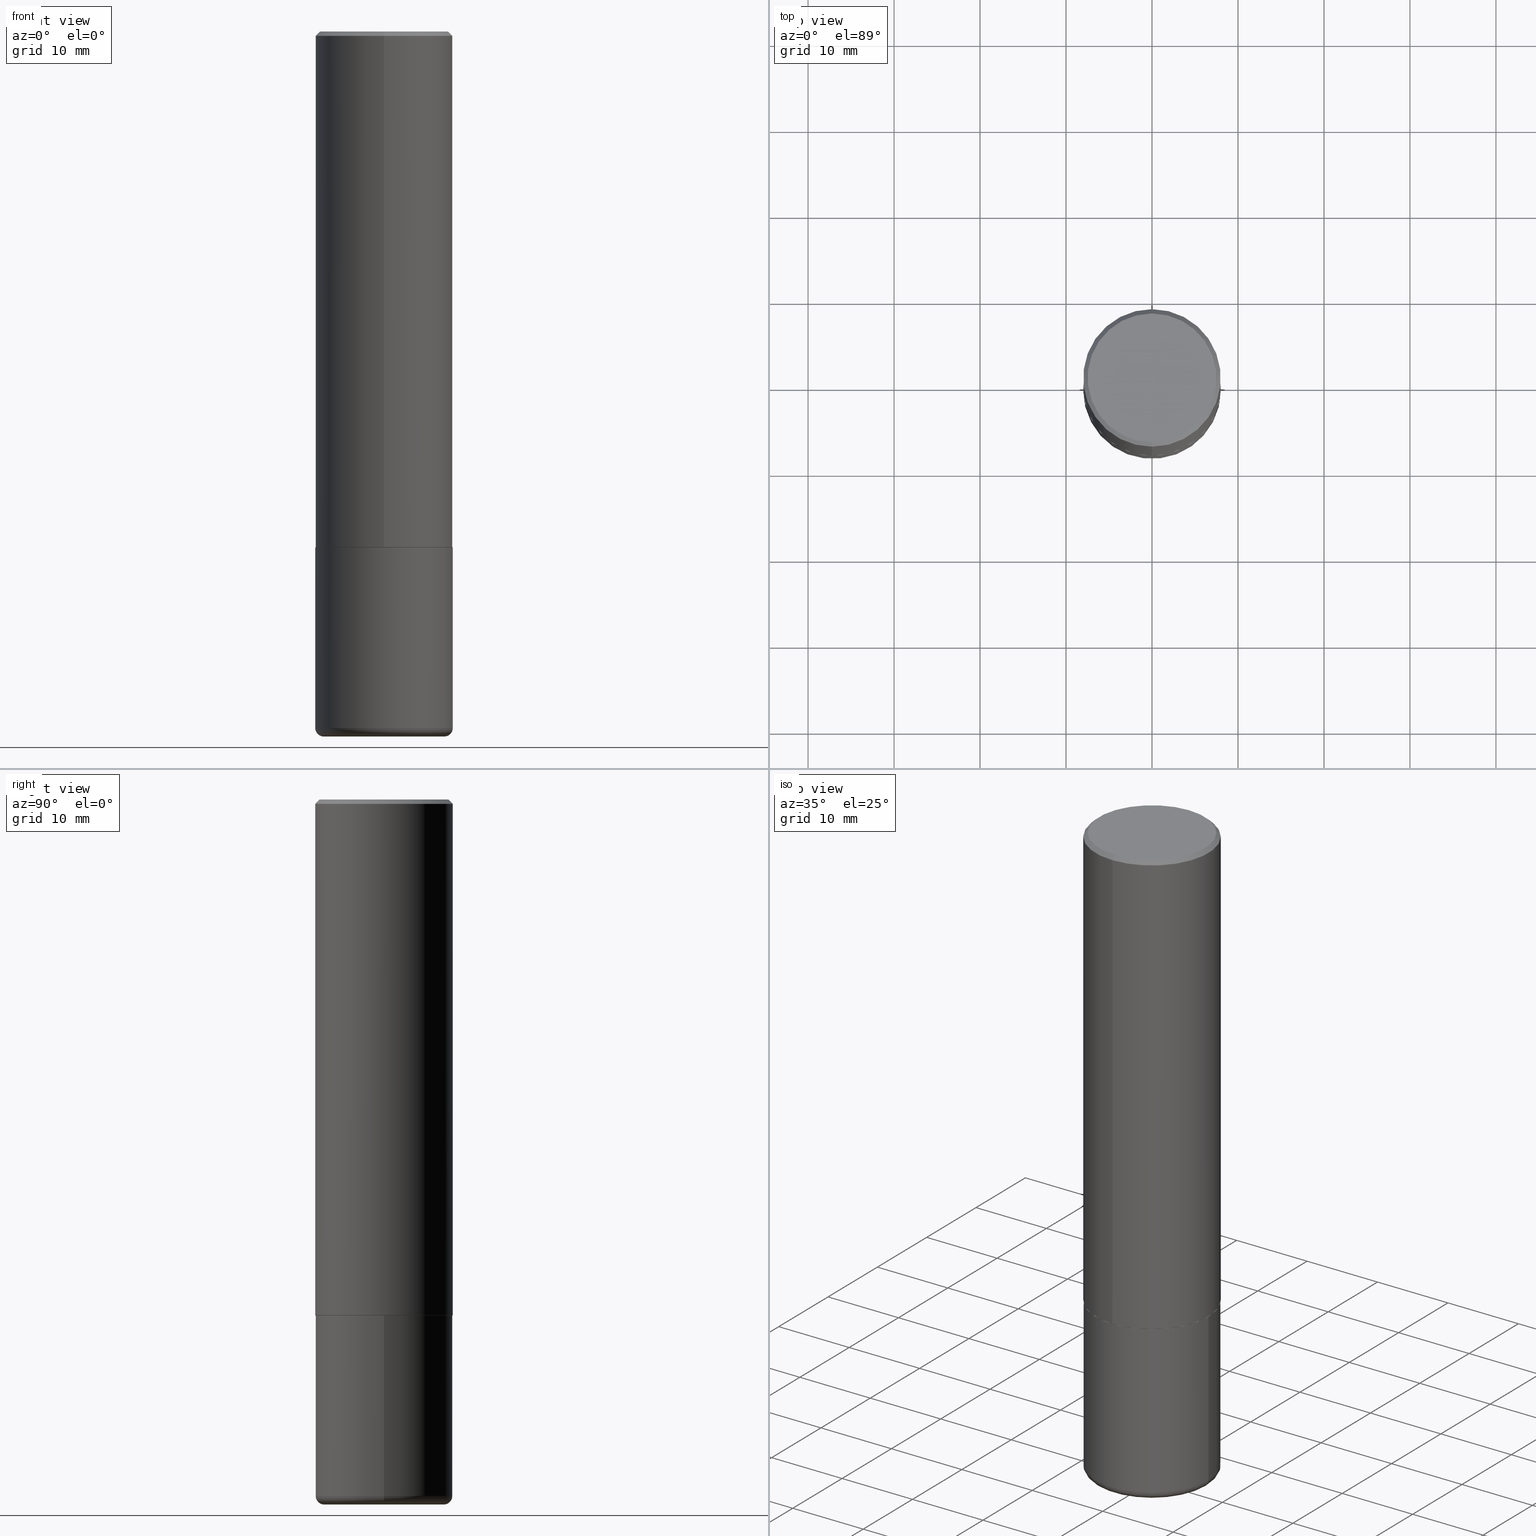
[diagram: canonical four-view strip — front | top / right | iso, engineering-drawing reading convention]
A machine part, canonical four-view strip (front | top / right | iso — engineering-drawing reading convention). The complete STEP part file that produces these views, byte-faithful:
ISO-10303-21;
HEADER;
FILE_DESCRIPTION (( 'STEP AP203' ),
    '1' );
FILE_NAME ('42716.STEP',
    '2024-03-04T03:37:44',
    ( '' ),
    ( '' ),
    'SwSTEP 2.0',
    'SolidWorks 2023',
    '' );
FILE_SCHEMA (( 'CONFIG_CONTROL_DESIGN' ));
ENDSEC;

DATA;
#1 = DIRECTION ( 'NONE',  ( -6.982962677686265922E-15, -1.000000000000000000, 3.492397173158153582E-15 ) ) ;
#2 = VERTEX_POINT ( 'NONE', #276 ) ;
#3 = CARTESIAN_POINT ( 'NONE',  ( 0.3149500000000002853, -1.333326893677419946E-14, -3.188899999999999846 ) ) ;
#4 = AXIS2_PLACEMENT_3D ( 'NONE', #77, #413, #89 ) ;
#5 = ORIENTED_EDGE ( 'NONE', *, *, #149, .F. ) ;
#6 = DIRECTION ( 'NONE',  ( -2.444829282501072008E-29, 3.492397173158153582E-15, 1.000000000000000000 ) ) ;
#7 = MANIFOLD_SOLID_BREP ( 'Body-Move/Copy2[1]', #113 ) ;
#8 = DIRECTION ( 'NONE',  ( 1.000000000000000000, 0.000000000000000000, 0.000000000000000000 ) ) ;
#9 = CC_DESIGN_PERSON_AND_ORGANIZATION_ASSIGNMENT ( #177, #112, ( #67 ) ) ;
#10 = DIRECTION ( 'NONE',  ( -6.982962677686264344E-15, -1.000000000000000000, 3.492397173158153188E-15 ) ) ;
#11 = VECTOR ( 'NONE', #25, 39.37007874015748143 ) ;
#12 =( GEOMETRIC_REPRESENTATION_CONTEXT ( 3 ) GLOBAL_UNCERTAINTY_ASSIGNED_CONTEXT ( ( #247 ) ) GLOBAL_UNIT_ASSIGNED_CONTEXT ( ( #28, #251, #268 ) ) REPRESENTATION_CONTEXT ( 'NONE', 'WORKASPACE' ) );
#13 = APPLICATION_PROTOCOL_DEFINITION ( 'international standard', 'config_control_design', 1994, #350 ) ;
#14 = CARTESIAN_POINT ( 'NONE',  ( -2.192301132659545875E-15, -0.3139500000000082780, -2.362199999999999189 ) ) ;
#15 = CARTESIAN_POINT ( 'NONE',  ( 0.000000000000000000, 0.000000000000000000, 0.000000000000000000 ) ) ;
#16 = APPROVAL_STATUS ( 'not_yet_approved' ) ;
#17 = EDGE_CURVE ( 'NONE', #320, #265, #198, .T. ) ;
#18 = DIRECTION ( 'NONE',  ( 2.444829282501072008E-29, -3.492397173158153582E-15, -1.000000000000000000 ) ) ;
#19 = CIRCLE ( 'NONE', #148, 0.3149500000000000632 ) ;
#20 = CARTESIAN_POINT ( 'NONE',  ( -3.972202148034154247E-45, 5.674223411957656832E-31, 1.624735999550272104E-16 ) ) ;
#21 = ADVANCED_FACE ( 'NONE', ( #375 ), #370, .F. ) ;
#22 = ORIENTED_EDGE ( 'NONE', *, *, #186, .F. ) ;
#23 = DIRECTION ( 'NONE',  ( -6.982962677686266711E-15, -1.000000000000000000, 3.491481338843145583E-15 ) ) ;
#24 = AXIS2_PLACEMENT_3D ( 'NONE', #331, #18, #240 ) ;
#25 = DIRECTION ( 'NONE',  ( -2.444829282501072288E-29, 3.492397173158153582E-15, 1.000000000000000000 ) ) ;
#26 = ORIENTED_EDGE ( 'NONE', *, *, #126, .T. ) ;
#27 = DIRECTION ( 'NONE',  ( -2.444829282501072008E-29, 3.492397173158153582E-15, 1.000000000000000000 ) ) ;
#28 =( CONVERSION_BASED_UNIT ( 'INCH', #318 ) LENGTH_UNIT ( ) NAMED_UNIT ( #238 ) );
#29 = EDGE_LOOP ( 'NONE', ( #301, #150 ) ) ;
#30 = CARTESIAN_POINT ( 'NONE',  ( 0.000000000000000000, 0.000000000000000000, 0.000000000000000000 ) ) ;
#31 = ORIENTED_EDGE ( 'NONE', *, *, #186, .T. ) ;
#32 = DIRECTION ( 'NONE',  ( -6.982962677686265922E-15, -1.000000000000000000, 3.469564049740290009E-15 ) ) ;
#33 = CC_DESIGN_APPROVAL ( #175, ( #67 ) ) ;
#34 = CARTESIAN_POINT ( 'NONE',  ( 2.237854346276465567E-15, 0.3149499999999920141, -2.361200000000001076 ) ) ;
#35 = VERTEX_POINT ( 'NONE', #306 ) ;
#36 = DIRECTION ( 'NONE',  ( -6.982962677686266711E-15, -1.000000000000000000, 3.480615376543096919E-15 ) ) ;
#37 = ORIENTED_EDGE ( 'NONE', *, *, #363, .F. ) ;
#38 = EDGE_CURVE ( 'NONE', #387, #210, #182, .T. ) ;
#39 = DIRECTION ( 'NONE',  ( -2.444829282501072008E-29, 3.492397173158153582E-15, 1.000000000000000000 ) ) ;
#40 = ORIENTED_EDGE ( 'NONE', *, *, #363, .T. ) ;
#41 = TOROIDAL_SURFACE ( 'NONE', #252, 0.2755500000000000171, 0.03940000000000037222 ) ;
#42 = APPLICATION_CONTEXT ( 'configuration controlled 3d designs of mechanical parts and assemblies' ) ;
#43 = EDGE_LOOP ( 'NONE', ( #162, #308, #353, #194 ) ) ;
#44 = ADVANCED_FACE ( 'NONE', ( #270 ), #205, .T. ) ;
#45 = DIRECTION ( 'NONE',  ( -2.444829282501072008E-29, 3.492397173158153582E-15, 1.000000000000000000 ) ) ;
#46 = AXIS2_PLACEMENT_3D ( 'NONE', #94, #23, #216 ) ;
#47 = APPROVAL_PERSON_ORGANIZATION ( #142, #153, #116 ) ;
#48 = APPROVAL ( #364, 'UNSPECIFIED' ) ;
#49 = DIRECTION ( 'NONE',  ( -2.444829282501072008E-29, 3.492397173158153582E-15, 1.000000000000000000 ) ) ;
#50 = CALENDAR_DATE ( 2024, 3, 3 ) ;
#51 = CIRCLE ( 'NONE', #383, 0.2949499999999998789 ) ;
#52 = ADVANCED_FACE ( 'NONE', ( #202 ), #174, .F. ) ;
#53 = DIRECTION ( 'NONE',  ( 1.000000000000000000, -6.982962677686268288E-15, 0.000000000000000000 ) ) ;
#54 = CALENDAR_DATE ( 2024, 3, 3 ) ;
#55 = EDGE_LOOP ( 'NONE', ( #106, #134 ) ) ;
#56 = DIRECTION ( 'NONE',  ( 1.000000000000000000, -6.982962677686266711E-15, 4.876176775795936353E-29 ) ) ;
#57 = DIRECTION ( 'NONE',  ( 4.937700262164543309E-15, 0.7071067811865444641, -0.7071067811865505703 ) ) ;
#58 = CARTESIAN_POINT ( 'NONE',  ( -2.160713844398143757E-15, -0.3149500000000001743, -0.01999999999999896652 ) ) ;
#59 = FACE_OUTER_BOUND ( 'NONE', #224, .T. ) ;
#60 = CARTESIAN_POINT ( 'NONE',  ( 2.237854346276435985E-15, 0.3149500000000001743, -1.099930489686160976E-15 ) ) ;
#61 = DIRECTION ( 'NONE',  ( 2.444829282501072008E-29, -3.492397173158153582E-15, -1.000000000000000000 ) ) ;
#62 = CARTESIAN_POINT ( 'NONE',  ( 0.3149500000000000077, -2.199284095337289871E-15, 1.535751875536930130E-29 ) ) ;
#63 = EDGE_LOOP ( 'NONE', ( #220, #229, #155, #144 ) ) ;
#64 = DIRECTION ( 'NONE',  ( -6.982962677686265922E-15, -1.000000000000000000, 3.492397173158152793E-15 ) ) ;
#65 = DIRECTION ( 'NONE',  ( 2.438088387897960049E-29, -3.491481338843145188E-15, -1.000000000000000000 ) ) ;
#66 = ORIENTED_EDGE ( 'NONE', *, *, #324, .T. ) ;
#67 = SECURITY_CLASSIFICATION ( '', '', #307 ) ;
#68 = ORIENTED_EDGE ( 'NONE', *, *, #149, .T. ) ;
#69 = ORIENTED_EDGE ( 'NONE', *, *, #200, .T. ) ;
#70 = CARTESIAN_POINT ( 'NONE',  ( 7.798355476043781401E-29, -1.113398484143690801E-14, -3.188899999999999846 ) ) ;
#71 = DIRECTION ( 'NONE',  ( 0.000000000000000000, 0.000000000000000000, 1.000000000000000000 ) ) ;
#72 = ORIENTED_EDGE ( 'NONE', *, *, #243, .F. ) ;
#73 = ADVANCED_FACE ( 'NONE', ( #219 ), #41, .T. ) ;
#74 = AXIS2_PLACEMENT_3D ( 'NONE', #342, #354, #64 ) ;
#75 = CIRCLE ( 'NONE', #315, 0.3149500000000000077 ) ;
#76 = APPLICATION_PROTOCOL_DEFINITION ( 'international standard', 'config_control_design', 1994, #42 ) ;
#77 = CARTESIAN_POINT ( 'NONE',  ( 2.059624841783563274E-15, 0.2949499999999998789, -9.488457462454831822E-16 ) ) ;
#78 = COORDINATED_UNIVERSAL_TIME_OFFSET ( 5, 0, .BEHIND. ) ;
#79 = AXIS2_PLACEMENT_3D ( 'NONE', #399, #45, #10 ) ;
#80 = APPROVAL_PERSON_ORGANIZATION ( #231, #48, #199 ) ;
#81 = EDGE_CURVE ( 'NONE', #85, #418, #382, .T. ) ;
#82 = DIRECTION ( 'NONE',  ( -2.444829282501072008E-29, 3.492397173158153582E-15, 1.000000000000000000 ) ) ;
#83 = DIRECTION ( 'NONE',  ( -1.000000000000000000, 6.982962677686265922E-15, -4.876176775795935793E-29 ) ) ;
#84 = DATE_TIME_ROLE ( 'classification_date' ) ;
#85 = VERTEX_POINT ( 'NONE', #127 ) ;
#86 = CC_DESIGN_PERSON_AND_ORGANIZATION_ASSIGNMENT ( #203, #401, ( #245 ) ) ;
#87 = VECTOR ( 'NONE', #181, 39.37007874015748143 ) ;
#88 = DESIGN_CONTEXT ( 'detailed design', #42, 'design' ) ;
#89 = DIRECTION ( 'NONE',  ( 6.982962677686265922E-15, 1.000000000000000000, -3.492397173158153582E-15 ) ) ;
#90 = APPROVAL_ROLE ( '' ) ;
#91 = ORIENTED_EDGE ( 'NONE', *, *, #195, .T. ) ;
#92 = DIRECTION ( 'NONE',  ( -2.445468806185136877E-29, 3.491481338843145188E-15, 1.000000000000000000 ) ) ;
#93 = PLANE ( 'NONE',  #171 ) ;
#94 = CARTESIAN_POINT ( 'NONE',  ( 0.2755500000000000171, -1.305814020727335945E-14, -3.188899999999999846 ) ) ;
#95 = AXIS2_PLACEMENT_3D ( 'NONE', #196, #39, #36 ) ;
#96 = DIRECTION ( 'NONE',  ( -2.445468806185136597E-29, 3.491481338843145583E-15, 1.000000000000000000 ) ) ;
#97 = LINE ( 'NONE', #192, #253 ) ;
#98 = ORIENTED_EDGE ( 'NONE', *, *, #335, .F. ) ;
#99 = DIRECTION ( 'NONE',  ( 1.000000000000000000, -6.982962677686266711E-15, 4.883557194083112901E-29 ) ) ;
#100 = ORIENTED_EDGE ( 'NONE', *, *, #385, .T. ) ;
#101 = CC_DESIGN_PERSON_AND_ORGANIZATION_ASSIGNMENT ( #299, #266, ( #336 ) ) ;
#102 = EDGE_LOOP ( 'NONE', ( #297, #66, #5, #388 ) ) ;
#103 = AXIS2_PLACEMENT_3D ( 'NONE', #70, #164, #221 ) ;
#104 = CARTESIAN_POINT ( 'NONE',  ( 2.129454468560426967E-15, 0.2949499999999998789, -8.676089462679696633E-16 ) ) ;
#105 = CARTESIAN_POINT ( 'NONE',  ( -0.2755500000000000171, -9.176084333049950645E-15, -3.188899999999999846 ) ) ;
#106 = ORIENTED_EDGE ( 'NONE', *, *, #335, .T. ) ;
#107 = AXIS2_PLACEMENT_3D ( 'NONE', #304, #395, #83 ) ;
#108 = VECTOR ( 'NONE', #349, 39.37007874015748854 ) ;
#109 = DIRECTION ( 'NONE',  ( -2.444829282501072008E-29, 3.492397173158153582E-15, 1.000000000000000000 ) ) ;
#110 = MECHANICAL_CONTEXT ( 'NONE', #350, 'mechanical' ) ;
#111 = EDGE_CURVE ( 'NONE', #166, #312, #139, .T. ) ;
#112 = PERSON_AND_ORGANIZATION_ROLE ( 'classification_officer' ) ;
#113 = CLOSED_SHELL ( 'NONE', ( #114, #261, #21, #227, #73, #412 ) ) ;
#114 = ADVANCED_FACE ( 'NONE', ( #377 ), #410, .T. ) ;
#115 = DATE_AND_TIME ( #172, #156 ) ;
#116 = APPROVAL_ROLE ( '' ) ;
#117 = CIRCLE ( 'NONE', #358, 0.3149500000000000077 ) ;
#118 = CARTESIAN_POINT ( 'NONE',  ( 7.894706947007478239E-29, -1.127154920618732880E-14, -3.228300000000000836 ) ) ;
#119 = DIRECTION ( 'NONE',  ( -2.444829282501072008E-29, 3.492397173158153582E-15, 1.000000000000000000 ) ) ;
#120 = DIRECTION ( 'NONE',  ( -2.445468806185136597E-29, 3.491481338843145583E-15, 1.000000000000000000 ) ) ;
#121 = EDGE_CURVE ( 'NONE', #418, #279, #303, .T. ) ;
#122 = DIRECTION ( 'NONE',  ( -2.445468806185136597E-29, 3.491481338843145583E-15, 1.000000000000000000 ) ) ;
#123 = AXIS2_PLACEMENT_3D ( 'NONE', #30, #145, #280 ) ;
#124 = CARTESIAN_POINT ( 'NONE',  ( 7.894706947007478239E-29, -1.127154920618732880E-14, -3.228300000000000836 ) ) ;
#125 = ORIENTED_EDGE ( 'NONE', *, *, #394, .T. ) ;
#126 = EDGE_CURVE ( 'NONE', #2, #279, #137, .T. ) ;
#127 = CARTESIAN_POINT ( 'NONE',  ( -0.2755500000000000171, -9.104889596480423310E-15, -3.228300000000000836 ) ) ;
#128 = EDGE_LOOP ( 'NONE', ( #91, #125, #22, #264 ) ) ;
#129 = CARTESIAN_POINT ( 'NONE',  ( 3.424787283148176621E-29, -1.767272857686150090E-14, -3.228299999999999947 ) ) ;
#130 = VERTEX_POINT ( 'NONE', #246 ) ;
#131 = CIRCLE ( 'NONE', #368, 0.2755500000000000171 ) ;
#132 = ORIENTED_EDGE ( 'NONE', *, *, #81, .F. ) ;
#133 = DIRECTION ( 'NONE',  ( -6.982962677686265922E-15, -1.000000000000000000, 3.469564049740290009E-15 ) ) ;
#134 = ORIENTED_EDGE ( 'NONE', *, *, #140, .T. ) ;
#135 = CARTESIAN_POINT ( 'NONE',  ( 5.772730901841530937E-29, -8.246248205261031476E-15, -2.361199999999999743 ) ) ;
#136 = ADVANCED_BREP_SHAPE_REPRESENTATION ( '42716', ( #7, #141, #414 ), #12 ) ;
#137 = CIRCLE ( 'NONE', #273, 0.3149500000000000632 ) ;
#138 = CARTESIAN_POINT ( 'NONE',  ( 5.775175731124033675E-29, -8.249740602434191756E-15, -2.362200000000000077 ) ) ;
#139 = CIRCLE ( 'NONE', #74, 0.2949499999999998789 ) ;
#140 = EDGE_CURVE ( 'NONE', #130, #35, #117, .T. ) ;
#141 = MANIFOLD_SOLID_BREP ( 'Body-Move/Copy2[2]', #201 ) ;
#142 = PERSON_AND_ORGANIZATION ( #339, #269 ) ;
#143 = DATE_AND_TIME ( #50, #284 ) ;
#144 = ORIENTED_EDGE ( 'NONE', *, *, #385, .F. ) ;
#145 = DIRECTION ( 'NONE',  ( -2.445468806185136597E-29, 3.491481338843145583E-15, 1.000000000000000000 ) ) ;
#146 = AXIS2_PLACEMENT_3D ( 'NONE', #124, #256, #248 ) ;
#147 = AXIS2_PLACEMENT_3D ( 'NONE', #332, #160, #260 ) ;
#148 = AXIS2_PLACEMENT_3D ( 'NONE', #283, #397, #204 ) ;
#149 = EDGE_CURVE ( 'NONE', #361, #416, #389, .T. ) ;
#150 = ORIENTED_EDGE ( 'NONE', *, *, #267, .F. ) ;
#151 = CARTESIAN_POINT ( 'NONE',  ( 5.775175731124033675E-29, -8.249740602434191756E-15, -2.362200000000000077 ) ) ;
#152 = DIRECTION ( 'NONE',  ( -2.444829282501071727E-29, 3.492397173158153582E-15, 1.000000000000000000 ) ) ;
#153 = APPROVAL ( #16, 'UNSPECIFIED' ) ;
#154 = VECTOR ( 'NONE', #92, 39.37007874015748143 ) ;
#155 = ORIENTED_EDGE ( 'NONE', *, *, #345, .T. ) ;
#156 = LOCAL_TIME ( 22, 37, 44.00000000000000000, #209 ) ;
#157 = CARTESIAN_POINT ( 'NONE',  ( -0.3149500000000000077, 2.237854346276435590E-15, -1.549218606675782676E-29 ) ) ;
#158 = DIRECTION ( 'NONE',  ( -1.000000000000000000, 7.105427357601001859E-15, 0.000000000000000000 ) ) ;
#159 = ORIENTED_EDGE ( 'NONE', *, *, #345, .F. ) ;
#160 = DIRECTION ( 'NONE',  ( -2.444829282501072008E-29, 3.492397173158153582E-15, 1.000000000000000000 ) ) ;
#161 = EDGE_LOOP ( 'NONE', ( #191, #228, #294, #390 ) ) ;
#162 = ORIENTED_EDGE ( 'NONE', *, *, #200, .F. ) ;
#163 = CONICAL_SURFACE ( 'NONE', #398, 0.3139500000000000068, 0.7853981633974141952 ) ;
#164 = DIRECTION ( 'NONE',  ( -2.445468806185136597E-29, 3.491481338843145583E-15, 1.000000000000000000 ) ) ;
#165 = EDGE_CURVE ( 'NONE', #2, #130, #184, .T. ) ;
#166 = VERTEX_POINT ( 'NONE', #214 ) ;
#167 = DIRECTION ( 'NONE',  ( -2.445468806185136877E-29, 3.491481338843145188E-15, 1.000000000000000000 ) ) ;
#168 = EDGE_CURVE ( 'NONE', #361, #210, #381, .T. ) ;
#169 = AXIS2_PLACEMENT_3D ( 'NONE', #292, #314, #417 ) ;
#170 = DIRECTION ( 'NONE',  ( -6.982962677686266711E-15, -1.000000000000000000, 3.480615376543096919E-15 ) ) ;
#171 = AXIS2_PLACEMENT_3D ( 'NONE', #226, #152, #1 ) ;
#172 = CALENDAR_DATE ( 2024, 3, 3 ) ;
#173 = CC_DESIGN_PERSON_AND_ORGANIZATION_ASSIGNMENT ( #369, #275, ( #245 ) ) ;
#174 = PLANE ( 'NONE',  #4 ) ;
#175 = APPROVAL ( #338, 'UNSPECIFIED' ) ;
#176 = CYLINDRICAL_SURFACE ( 'NONE', #123, 0.3149500000000000077 ) ;
#177 = PERSON_AND_ORGANIZATION ( #339, #269 ) ;
#178 = DIRECTION ( 'NONE',  ( 1.000000000000000000, -6.982962677686263555E-15, 0.000000000000000000 ) ) ;
#179 = EDGE_LOOP ( 'NONE', ( #72, #37, #100, #197 ) ) ;
#180 = DIRECTION ( 'NONE',  ( 5.024295867787889629E-15, 0.7071067811865257013, 0.7071067811865691111 ) ) ;
#181 = DIRECTION ( 'NONE',  ( -2.444829282501072288E-29, 3.492397173158153582E-15, 1.000000000000000000 ) ) ;
#182 = CIRCLE ( 'NONE', #190, 0.3149500000000000632 ) ;
#183 = DIRECTION ( 'NONE',  ( -4.851104656540959542E-15, -0.7071067811865493491, -0.7071067811865456854 ) ) ;
#184 = LINE ( 'NONE', #157, #154 ) ;
#185 = LINE ( 'NONE', #329, #296 ) ;
#186 = EDGE_CURVE ( 'NONE', #279, #2, #215, .T. ) ;
#187 = ORIENTED_EDGE ( 'NONE', *, *, #317, .F. ) ;
#188 = DIRECTION ( 'NONE',  ( -2.445468806185136597E-29, 3.491481338843145583E-15, 1.000000000000000000 ) ) ;
#189 = DIRECTION ( 'NONE',  ( -1.000000000000000000, 6.982962677686265922E-15, -4.876176775795935793E-29 ) ) ;
#190 = AXIS2_PLACEMENT_3D ( 'NONE', #271, #82, #241 ) ;
#191 = ORIENTED_EDGE ( 'NONE', *, *, #324, .F. ) ;
#192 = CARTESIAN_POINT ( 'NONE',  ( 2.199284095337290265E-15, 0.3149500000000000077, -0.02000000000000116962 ) ) ;
#193 = EDGE_LOOP ( 'NONE', ( #362, #26, #291, #356 ) ) ;
#194 = ORIENTED_EDGE ( 'NONE', *, *, #38, .F. ) ;
#195 = EDGE_CURVE ( 'NONE', #418, #85, #131, .T. ) ;
#196 = CARTESIAN_POINT ( 'NONE',  ( 5.775175731124033675E-29, -8.249740602434191756E-15, -2.362200000000000077 ) ) ;
#197 = ORIENTED_EDGE ( 'NONE', *, *, #38, .T. ) ;
#198 = CIRCLE ( 'NONE', #334, 0.3139500000000000068 ) ;
#199 = APPROVAL_ROLE ( '' ) ;
#200 = EDGE_CURVE ( 'NONE', #416, #387, #258, .T. ) ;
#201 = CLOSED_SHELL ( 'NONE', ( #277, #44, #328, #406, #305, #237, #365, #52 ) ) ;
#202 = FACE_OUTER_BOUND ( 'NONE', #255, .T. ) ;
#203 = PERSON_AND_ORGANIZATION ( #339, #269 ) ;
#204 = DIRECTION ( 'NONE',  ( -6.982962677686265922E-15, -1.000000000000000000, 3.496670018878888311E-15 ) ) ;
#205 = CYLINDRICAL_SURFACE ( 'NONE', #347, 0.3149500000000001743 ) ;
#206 = APPROVAL_PERSON_ORGANIZATION ( #236, #175, #90 ) ;
#207 = LINE ( 'NONE', #62, #263 ) ;
#208 = CARTESIAN_POINT ( 'NONE',  ( -2.160713844398143757E-15, -0.3149500000000001743, -0.01999999999999896652 ) ) ;
#209 = COORDINATED_UNIVERSAL_TIME_OFFSET ( 5, 0, .BEHIND. ) ;
#210 = VERTEX_POINT ( 'NONE', #208 ) ;
#211 = CARTESIAN_POINT ( 'NONE',  ( -2.199284095337290265E-15, -0.3149500000000001743, 1.099930489686160976E-15 ) ) ;
#212 = CC_DESIGN_DATE_AND_TIME_ASSIGNMENT ( #372, #84, ( #67 ) ) ;
#213 = ORIENTED_EDGE ( 'NONE', *, *, #394, .F. ) ;
#214 = CARTESIAN_POINT ( 'NONE',  ( -2.092108864420428031E-15, -0.2949499999999998789, 1.192556146178024035E-15 ) ) ;
#215 = CIRCLE ( 'NONE', #169, 0.3149500000000000632 ) ;
#216 = DIRECTION ( 'NONE',  ( 1.000000000000000000, -6.982962677686256455E-15, 0.000000000000000000 ) ) ;
#217 = LINE ( 'NONE', #355, #108 ) ;
#218 = EDGE_LOOP ( 'NONE', ( #31, #259, #98, #187 ) ) ;
#219 = FACE_OUTER_BOUND ( 'NONE', #326, .T. ) ;
#220 = ORIENTED_EDGE ( 'NONE', *, *, #111, .F. ) ;
#221 = DIRECTION ( 'NONE',  ( 1.000000000000000000, -6.982962677686266711E-15, 4.883557194083112901E-29 ) ) ;
#222 = DIRECTION ( 'NONE',  ( 7.105427357601001859E-15, 1.000000000000000000, -3.491481338843145583E-15 ) ) ;
#223 = AXIS2_PLACEMENT_3D ( 'NONE', #135, #6, #133 ) ;
#224 = EDGE_LOOP ( 'NONE', ( #327, #132 ) ) ;
#225 = LOCAL_TIME ( 22, 37, 44.00000000000000000, #78 ) ;
#226 = CARTESIAN_POINT ( 'NONE',  ( 5.775175731124033675E-29, -8.249740602434191756E-15, -2.362200000000000077 ) ) ;
#227 = ADVANCED_FACE ( 'NONE', ( #319 ), #176, .T. ) ;
#228 = ORIENTED_EDGE ( 'NONE', *, *, #267, .T. ) ;
#229 = ORIENTED_EDGE ( 'NONE', *, *, #243, .T. ) ;
#230 = CYLINDRICAL_SURFACE ( 'NONE', #79, 0.3149500000000001743 ) ;
#231 = PERSON_AND_ORGANIZATION ( #339, #269 ) ;
#232 = CC_DESIGN_APPROVAL ( #48, ( #310 ) ) ;
#233 = CC_DESIGN_PERSON_AND_ORGANIZATION_ASSIGNMENT ( #337, #244, ( #310 ) ) ;
#234 = COORDINATED_UNIVERSAL_TIME_OFFSET ( 5, 0, .BEHIND. ) ;
#235 = CC_DESIGN_SECURITY_CLASSIFICATION ( #67, ( #245 ) ) ;
#236 = PERSON_AND_ORGANIZATION ( #339, #269 ) ;
#237 = ADVANCED_FACE ( 'NONE', ( #405 ), #163, .T. ) ;
#238 = DIMENSIONAL_EXPONENTS ( 1.000000000000000000, 0.000000000000000000, 0.000000000000000000, 0.000000000000000000, 0.000000000000000000, 0.000000000000000000, 0.000000000000000000 ) ;
#239 = CALENDAR_DATE ( 2024, 3, 3 ) ;
#240 = DIRECTION ( 'NONE',  ( 6.982962677686265922E-15, 1.000000000000000000, -3.496670018878888311E-15 ) ) ;
#241 = DIRECTION ( 'NONE',  ( -6.982962677686265922E-15, -1.000000000000000000, 3.496670018878888311E-15 ) ) ;
#242 = SHAPE_DEFINITION_REPRESENTATION ( #274, #136 ) ;
#243 = EDGE_CURVE ( 'NONE', #166, #210, #409, .T. ) ;
#244 = PERSON_AND_ORGANIZATION_ROLE ( 'creator' ) ;
#245 = PRODUCT_DEFINITION_FORMATION_WITH_SPECIFIED_SOURCE ( 'ANY', '', #336, .NOT_KNOWN. ) ;
#246 = CARTESIAN_POINT ( 'NONE',  ( -0.3149500000000000077, -7.452926683749658623E-15, -2.362200000000000077 ) ) ;
#247 = UNCERTAINTY_MEASURE_WITH_UNIT (LENGTH_MEASURE( 1.000000000000000082E-05 ), #28, 'distance_accuracy_value', 'NONE');
#248 = DIRECTION ( 'NONE',  ( 1.000000000000000000, -6.982962677686268288E-15, 0.000000000000000000 ) ) ;
#249 = CC_DESIGN_DATE_AND_TIME_ASSIGNMENT ( #376, #407, ( #310 ) ) ;
#250 = CARTESIAN_POINT ( 'NONE',  ( 5.776686413970529753E-29, -8.247577218615279626E-15, -2.362200000000000077 ) ) ;
#251 =( NAMED_UNIT ( * ) PLANE_ANGLE_UNIT ( ) SI_UNIT ( $, .RADIAN. ) );
#252 = AXIS2_PLACEMENT_3D ( 'NONE', #386, #120, #99 ) ;
#253 = VECTOR ( 'NONE', #57, 39.37007874015748143 ) ;
#254 = PRODUCT_RELATED_PRODUCT_CATEGORY ( 'detail', '', ( #336 ) ) ;
#255 = EDGE_LOOP ( 'NONE', ( #40, #384 ) ) ;
#256 = DIRECTION ( 'NONE',  ( -2.445468806185136597E-29, 3.491481338843145583E-15, 1.000000000000000000 ) ) ;
#257 = EDGE_LOOP ( 'NONE', ( #68, #69, #159, #293 ) ) ;
#258 = LINE ( 'NONE', #60, #11 ) ;
#259 = ORIENTED_EDGE ( 'NONE', *, *, #165, .T. ) ;
#260 = DIRECTION ( 'NONE',  ( -6.982962677686266711E-15, -1.000000000000000000, 3.480615376543096919E-15 ) ) ;
#261 = ADVANCED_FACE ( 'NONE', ( #316 ), #322, .T. ) ;
#262 = CARTESIAN_POINT ( 'NONE',  ( 0.2755500000000000171, -1.319570457202378025E-14, -3.228300000000000836 ) ) ;
#263 = VECTOR ( 'NONE', #167, 39.37007874015748143 ) ;
#264 = ORIENTED_EDGE ( 'NONE', *, *, #121, .F. ) ;
#265 = VERTEX_POINT ( 'NONE', #288 ) ;
#266 = PERSON_AND_ORGANIZATION_ROLE ( 'design_owner' ) ;
#267 = EDGE_CURVE ( 'NONE', #265, #320, #392, .T. ) ;
#268 =( NAMED_UNIT ( * ) SI_UNIT ( $, .STERADIAN. ) SOLID_ANGLE_UNIT ( ) );
#269 = ORGANIZATION ( 'UNSPECIFIED', 'UNSPECIFIED', '' ) ;
#270 = FACE_OUTER_BOUND ( 'NONE', #257, .T. ) ;
#271 = CARTESIAN_POINT ( 'NONE',  ( 4.889658565002160796E-31, -6.984794346316331323E-17, -0.02000000000000006981 ) ) ;
#272 = CARTESIAN_POINT ( 'NONE',  ( 5.776686413970529753E-29, -8.247577218615279626E-15, -2.362200000000000077 ) ) ;
#273 = AXIS2_PLACEMENT_3D ( 'NONE', #344, #188, #351 ) ;
#274 = PRODUCT_DEFINITION_SHAPE ( 'NONE', 'NONE',  #310 ) ;
#275 = PERSON_AND_ORGANIZATION_ROLE ( 'design_supplier' ) ;
#276 = CARTESIAN_POINT ( 'NONE',  ( -0.3149500000000002853, -8.896130495160468872E-15, -3.188899999999999846 ) ) ;
#277 = ADVANCED_FACE ( 'NONE', ( #298 ), #289, .T. ) ;
#278 = DIRECTION ( 'NONE',  ( -6.982962677686265922E-15, -1.000000000000000000, 3.492397173158152793E-15 ) ) ;
#279 = VERTEX_POINT ( 'NONE', #3 ) ;
#280 = DIRECTION ( 'NONE',  ( 1.000000000000000000, -6.982962677686266711E-15, 4.876176775795936353E-29 ) ) ;
#281 = CALENDAR_DATE ( 2024, 3, 3 ) ;
#282 = VECTOR ( 'NONE', #183, 39.37007874015748143 ) ;
#283 = CARTESIAN_POINT ( 'NONE',  ( 4.889658565002160796E-31, -6.984794346316331323E-17, -0.02000000000000006981 ) ) ;
#284 = LOCAL_TIME ( 22, 37, 44.00000000000000000, #367 ) ;
#285 = DIRECTION ( 'NONE',  ( -6.982962677686266711E-15, -1.000000000000000000, 3.480615376543096919E-15 ) ) ;
#286 = CARTESIAN_POINT ( 'NONE',  ( 4.889658565002160796E-31, -6.984794346316331323E-17, -0.02000000000000006981 ) ) ;
#287 = DIRECTION ( 'NONE',  ( -2.444829282501072008E-29, 3.492397173158153582E-15, 1.000000000000000000 ) ) ;
#288 = CARTESIAN_POINT ( 'NONE',  ( 2.234301632597693067E-15, 0.3139499999999917357, -2.362200000000001410 ) ) ;
#289 = CONICAL_SURFACE ( 'NONE', #147, 0.3139500000000000068, 0.7853981633974141952 ) ;
#290 = CONICAL_SURFACE ( 'NONE', #341, 0.3149500000000000632, 0.7853981633974473908 ) ;
#291 = ORIENTED_EDGE ( 'NONE', *, *, #317, .T. ) ;
#292 = CARTESIAN_POINT ( 'NONE',  ( 7.798355476043781401E-29, -1.113398484143690801E-14, -3.188899999999999846 ) ) ;
#293 = ORIENTED_EDGE ( 'NONE', *, *, #168, .F. ) ;
#294 = ORIENTED_EDGE ( 'NONE', *, *, #378, .T. ) ;
#295 = FACE_OUTER_BOUND ( 'NONE', #63, .T. ) ;
#296 = VECTOR ( 'NONE', #180, 39.37007874015748854 ) ;
#297 = ORIENTED_EDGE ( 'NONE', *, *, #17, .T. ) ;
#298 = FACE_OUTER_BOUND ( 'NONE', #102, .T. ) ;
#299 = PERSON_AND_ORGANIZATION ( #339, #269 ) ;
#300 = EDGE_CURVE ( 'NONE', #416, #361, #403, .T. ) ;
#301 = ORIENTED_EDGE ( 'NONE', *, *, #17, .F. ) ;
#302 = CARTESIAN_POINT ( 'NONE',  ( 0.000000000000000000, 0.000000000000000000, 0.000000000000000000 ) ) ;
#303 = CIRCLE ( 'NONE', #46, 0.03940000000000040692 ) ;
#304 = CARTESIAN_POINT ( 'NONE',  ( 5.776686413970529753E-29, -8.247577218615279626E-15, -2.362200000000000077 ) ) ;
#305 = ADVANCED_FACE ( 'NONE', ( #391 ), #230, .T. ) ;
#306 = CARTESIAN_POINT ( 'NONE',  ( 0.3149500000000000077, -1.044686131395256792E-14, -2.362200000000000077 ) ) ;
#307 = SECURITY_CLASSIFICATION_LEVEL ( 'unclassified' ) ;
#308 = ORIENTED_EDGE ( 'NONE', *, *, #300, .T. ) ;
#309 = CARTESIAN_POINT ( 'NONE',  ( -2.199284095337233467E-15, -0.3149500000000085564, -2.361199999999998855 ) ) ;
#310 = PRODUCT_DEFINITION ( 'UNKNOWN', '', #245, #88 ) ;
#311 = DIRECTION ( 'NONE',  ( -2.445468806185136597E-29, 3.491481338843145583E-15, 1.000000000000000000 ) ) ;
#312 = VERTEX_POINT ( 'NONE', #104 ) ;
#313 = CARTESIAN_POINT ( 'NONE',  ( 0.000000000000000000, 0.000000000000000000, 0.000000000000000000 ) ) ;
#314 = DIRECTION ( 'NONE',  ( -2.445468806185136597E-29, 3.491481338843145583E-15, 1.000000000000000000 ) ) ;
#315 = AXIS2_PLACEMENT_3D ( 'NONE', #272, #311, #178 ) ;
#316 = FACE_OUTER_BOUND ( 'NONE', #128, .T. ) ;
#317 = EDGE_CURVE ( 'NONE', #279, #35, #207, .T. ) ;
#318 = LENGTH_MEASURE_WITH_UNIT ( LENGTH_MEASURE( 0.02539999999999999897 ), #380 );
#319 = FACE_OUTER_BOUND ( 'NONE', #193, .T. ) ;
#320 = VERTEX_POINT ( 'NONE', #14 ) ;
#321 = DIRECTION ( 'NONE',  ( -2.445468806185136597E-29, 3.491481338843145583E-15, 1.000000000000000000 ) ) ;
#322 = TOROIDAL_SURFACE ( 'NONE', #103, 0.2755500000000000171, 0.03940000000000037222 ) ;
#323 = CIRCLE ( 'NONE', #404, 0.03940000000000040692 ) ;
#324 = EDGE_CURVE ( 'NONE', #265, #416, #185, .T. ) ;
#325 = ORIENTED_EDGE ( 'NONE', *, *, #126, .F. ) ;
#326 = EDGE_LOOP ( 'NONE', ( #213, #330, #360, #325 ) ) ;
#327 = ORIENTED_EDGE ( 'NONE', *, *, #195, .F. ) ;
#328 = ADVANCED_FACE ( 'NONE', ( #295 ), #348, .T. ) ;
#329 = CARTESIAN_POINT ( 'NONE',  ( 2.230748918918891775E-15, 0.3139499999999917357, -2.362200000000001410 ) ) ;
#330 = ORIENTED_EDGE ( 'NONE', *, *, #81, .T. ) ;
#331 = CARTESIAN_POINT ( 'NONE',  ( 4.889658565002160796E-31, -6.984794346316331323E-17, -0.02000000000000006981 ) ) ;
#332 = CARTESIAN_POINT ( 'NONE',  ( 5.775175731124033675E-29, -8.249740602434191756E-15, -2.362200000000000077 ) ) ;
#333 = COORDINATED_UNIVERSAL_TIME_OFFSET ( 5, 0, .BEHIND. ) ;
#334 = AXIS2_PLACEMENT_3D ( 'NONE', #138, #49, #170 ) ;
#335 = EDGE_CURVE ( 'NONE', #35, #130, #75, .T. ) ;
#336 = PRODUCT ( '42716', '42716', '', ( #110 ) ) ;
#337 = PERSON_AND_ORGANIZATION ( #339, #269 ) ;
#338 = APPROVAL_STATUS ( 'not_yet_approved' ) ;
#339 = PERSON ( 'UNSPECIFIED', 'UNSPECIFIED', 'UNSPECIFIED', ('UNSPECIFIED'), ('UNSPECIFIED'), ('UNSPECIFIED') ) ;
#340 = AXIS2_PLACEMENT_3D ( 'NONE', #313, #122, #56 ) ;
#341 = AXIS2_PLACEMENT_3D ( 'NONE', #286, #61, #357 ) ;
#342 = CARTESIAN_POINT ( 'NONE',  ( -3.972202148034154247E-45, 5.674223411957656832E-31, 1.624735999550272104E-16 ) ) ;
#343 = APPROVAL_DATE_TIME ( #371, #48 ) ;
#344 = CARTESIAN_POINT ( 'NONE',  ( 7.798355476043781401E-29, -1.113398484143690801E-14, -3.188899999999999846 ) ) ;
#345 = EDGE_CURVE ( 'NONE', #210, #387, #19, .T. ) ;
#346 = CARTESIAN_POINT ( 'NONE',  ( 5.772730901841530937E-29, -8.246248205261031476E-15, -2.361199999999999743 ) ) ;
#347 = AXIS2_PLACEMENT_3D ( 'NONE', #15, #109, #366 ) ;
#348 = CONICAL_SURFACE ( 'NONE', #24, 0.3149500000000000632, 0.7853981633974473908 ) ;
#349 = DIRECTION ( 'NONE',  ( -4.937700262164378437E-15, -0.7071067811865208164, 0.7071067811865739960 ) ) ;
#350 = APPLICATION_CONTEXT ( 'configuration controlled 3d designs of mechanical parts and assemblies' ) ;
#351 = DIRECTION ( 'NONE',  ( 1.000000000000000000, -6.982962677686268288E-15, 0.000000000000000000 ) ) ;
#352 = CARTESIAN_POINT ( 'NONE',  ( 2.199284095337290265E-15, 0.3149500000000000077, -0.02000000000000116962 ) ) ;
#353 = ORIENTED_EDGE ( 'NONE', *, *, #168, .T. ) ;
#354 = DIRECTION ( 'NONE',  ( -2.444829282501072008E-29, 3.492397173158153582E-15, 1.000000000000000000 ) ) ;
#355 = CARTESIAN_POINT ( 'NONE',  ( -2.192301132659545875E-15, -0.3139500000000082780, -2.362199999999999189 ) ) ;
#356 = ORIENTED_EDGE ( 'NONE', *, *, #140, .F. ) ;
#357 = DIRECTION ( 'NONE',  ( 6.982962677686265922E-15, 1.000000000000000000, -3.496670018878888311E-15 ) ) ;
#358 = AXIS2_PLACEMENT_3D ( 'NONE', #250, #321, #379 ) ;
#359 = LOCAL_TIME ( 22, 37, 44.00000000000000000, #234 ) ;
#360 = ORIENTED_EDGE ( 'NONE', *, *, #121, .T. ) ;
#361 = VERTEX_POINT ( 'NONE', #309 ) ;
#362 = ORIENTED_EDGE ( 'NONE', *, *, #165, .F. ) ;
#363 = EDGE_CURVE ( 'NONE', #312, #166, #51, .T. ) ;
#364 = APPROVAL_STATUS ( 'not_yet_approved' ) ;
#365 = ADVANCED_FACE ( 'NONE', ( #408 ), #93, .F. ) ;
#366 = DIRECTION ( 'NONE',  ( -6.982962677686264344E-15, -1.000000000000000000, 3.492397173158153188E-15 ) ) ;
#367 = COORDINATED_UNIVERSAL_TIME_OFFSET ( 5, 0, .BEHIND. ) ;
#368 = AXIS2_PLACEMENT_3D ( 'NONE', #118, #96, #53 ) ;
#369 = PERSON_AND_ORGANIZATION ( #339, #269 ) ;
#370 = PLANE ( 'NONE',  #107 ) ;
#371 = DATE_AND_TIME ( #281, #374 ) ;
#372 = DATE_AND_TIME ( #54, #359 ) ;
#373 = AXIS2_PLACEMENT_3D ( 'NONE', #346, #27, #32 ) ;
#374 = LOCAL_TIME ( 22, 37, 44.00000000000000000, #333 ) ;
#375 = FACE_OUTER_BOUND ( 'NONE', #55, .T. ) ;
#376 = DATE_AND_TIME ( #239, #225 ) ;
#377 = FACE_OUTER_BOUND ( 'NONE', #218, .T. ) ;
#378 = EDGE_CURVE ( 'NONE', #320, #361, #217, .T. ) ;
#379 = DIRECTION ( 'NONE',  ( 1.000000000000000000, -6.982962677686263555E-15, 0.000000000000000000 ) ) ;
#380 =( LENGTH_UNIT ( ) NAMED_UNIT ( * ) SI_UNIT ( $, .METRE. ) );
#381 = LINE ( 'NONE', #211, #87 ) ;
#382 = CIRCLE ( 'NONE', #146, 0.2755500000000000171 ) ;
#383 = AXIS2_PLACEMENT_3D ( 'NONE', #20, #119, #278 ) ;
#384 = ORIENTED_EDGE ( 'NONE', *, *, #111, .T. ) ;
#385 = EDGE_CURVE ( 'NONE', #312, #387, #97, .T. ) ;
#386 = CARTESIAN_POINT ( 'NONE',  ( 7.798355476043781401E-29, -1.113398484143690801E-14, -3.188899999999999846 ) ) ;
#387 = VERTEX_POINT ( 'NONE', #352 ) ;
#388 = ORIENTED_EDGE ( 'NONE', *, *, #378, .F. ) ;
#389 = CIRCLE ( 'NONE', #373, 0.3149500000000002853 ) ;
#390 = ORIENTED_EDGE ( 'NONE', *, *, #300, .F. ) ;
#391 = FACE_OUTER_BOUND ( 'NONE', #43, .T. ) ;
#392 = CIRCLE ( 'NONE', #95, 0.3139500000000000068 ) ;
#393 = CC_DESIGN_APPROVAL ( #153, ( #245 ) ) ;
#394 = EDGE_CURVE ( 'NONE', #85, #2, #323, .T. ) ;
#395 = DIRECTION ( 'NONE',  ( 2.438088387897960049E-29, -3.491481338843145188E-15, -1.000000000000000000 ) ) ;
#396 = APPROVAL_DATE_TIME ( #115, #153 ) ;
#397 = DIRECTION ( 'NONE',  ( -2.444829282501072008E-29, 3.492397173158153582E-15, 1.000000000000000000 ) ) ;
#398 = AXIS2_PLACEMENT_3D ( 'NONE', #151, #287, #285 ) ;
#399 = CARTESIAN_POINT ( 'NONE',  ( 0.000000000000000000, 0.000000000000000000, 0.000000000000000000 ) ) ;
#400 = AXIS2_PLACEMENT_3D ( 'NONE', #129, #65, #189 ) ;
#401 = PERSON_AND_ORGANIZATION_ROLE ( 'creator' ) ;
#402 = APPROVAL_DATE_TIME ( #143, #175 ) ;
#403 = CIRCLE ( 'NONE', #223, 0.3149500000000002853 ) ;
#404 = AXIS2_PLACEMENT_3D ( 'NONE', #105, #222, #158 ) ;
#405 = FACE_OUTER_BOUND ( 'NONE', #161, .T. ) ;
#406 = ADVANCED_FACE ( 'NONE', ( #411 ), #290, .T. ) ;
#407 = DATE_TIME_ROLE ( 'creation_date' ) ;
#408 = FACE_OUTER_BOUND ( 'NONE', #29, .T. ) ;
#409 = LINE ( 'NONE', #58, #282 ) ;
#410 = CYLINDRICAL_SURFACE ( 'NONE', #340, 0.3149500000000000077 ) ;
#411 = FACE_OUTER_BOUND ( 'NONE', #179, .T. ) ;
#412 = ADVANCED_FACE ( 'NONE', ( #59 ), #415, .T. ) ;
#413 = DIRECTION ( 'NONE',  ( 2.444829282501071727E-29, -3.492397173158153582E-15, -1.000000000000000000 ) ) ;
#414 = AXIS2_PLACEMENT_3D ( 'NONE', #302, #71, #8 ) ;
#415 = PLANE ( 'NONE',  #400 ) ;
#416 = VERTEX_POINT ( 'NONE', #34 ) ;
#417 = DIRECTION ( 'NONE',  ( 1.000000000000000000, -6.982962677686268288E-15, 0.000000000000000000 ) ) ;
#418 = VERTEX_POINT ( 'NONE', #262 ) ;
ENDSEC;
END-ISO-10303-21;
